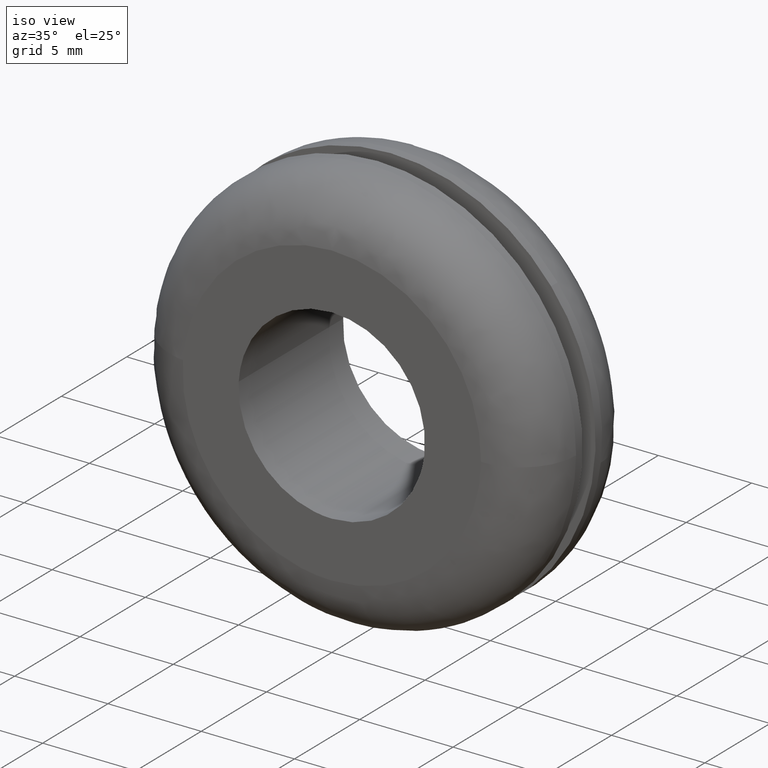
[diagram: clean part render]
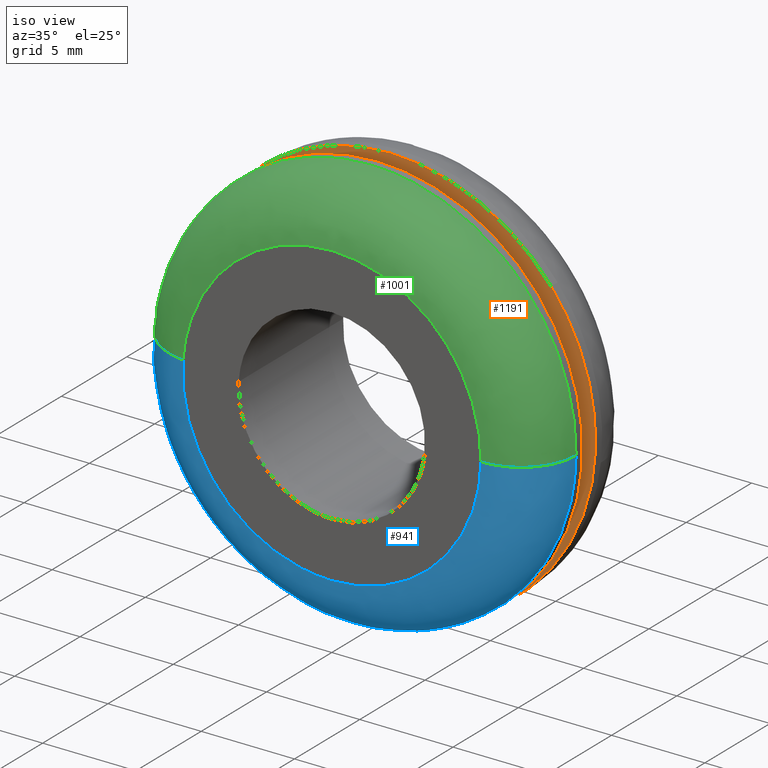
[diagram: same view with three faces highlighted in distinct colors, each labeled with its STEP entity id]
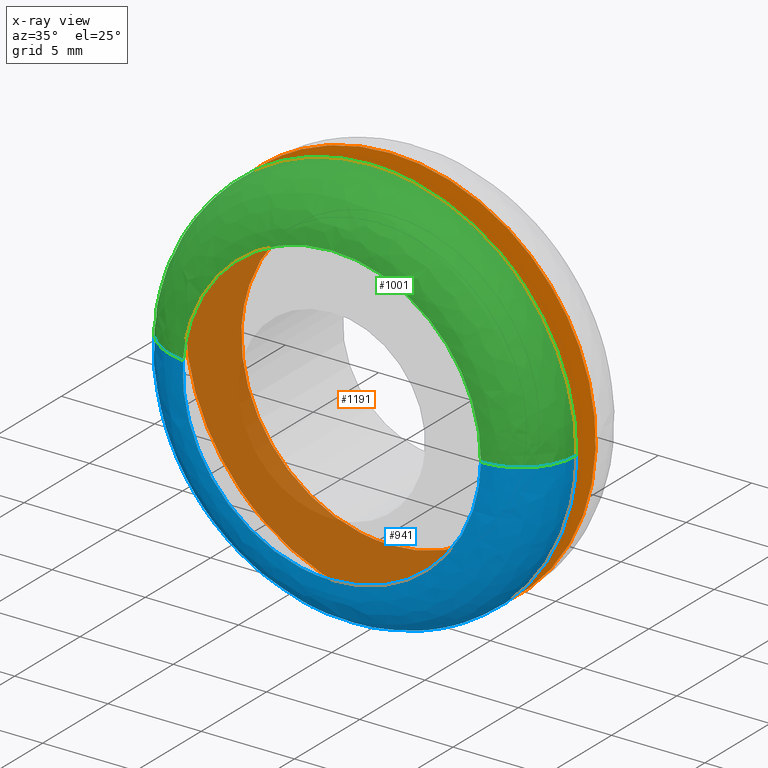
[diagram: x-ray of the same camera — body ghosted, the three highlighted faces saturated]
A machine part, iso view with three faces highlighted in distinct colors.
The next image is the same camera in x-ray (body ghosted, the three faces saturated) — at least one of them is partly hidden behind the body in this view.
Their STEP definitions:

[orange] entity #1191 — the highlighted face is a freeform B-spline surface patch.
#301=CARTESIAN_POINT('',(7.944076705149378,4.500000000000001,-0.944269719246281));
#302=VERTEX_POINT('',#301);
#308=CARTESIAN_POINT('',(0.0,4.500000000000000,8.0));
#309=VERTEX_POINT('',#308);
#310=CARTESIAN_POINT('',(7.944076705149379,4.500000000000001,-0.944269719246281));
#311=CARTESIAN_POINT('',(8.0,4.500000000000001,-0.473790856232588));
#312=CARTESIAN_POINT('',(8.0,4.500000000000000,-1.836910E-016));
#313=CARTESIAN_POINT('',(8.0,4.500000000000000,8.0));
#314=CARTESIAN_POINT('',(0.0,4.500000000000000,8.0));
#322=(BOUNDED_CURVE()B_SPLINE_CURVE(2,(#310,#311,#312,#313,#314),.UNSPECIFIED.,.F.,.U.)B_SPLINE_CURVE_WITH_KNOTS((3,2,3),(0.229562561973614,0.250000000000000,0.500000000000000),.UNSPECIFIED.)CURVE()GEOMETRIC_REPRESENTATION_ITEM()RATIONAL_B_SPLINE_CURVE((0.956026927569199,0.976056051968605,1.0,0.707106781186548,1.0))REPRESENTATION_ITEM(''));
#323=EDGE_CURVE('',#302,#309,#322,.T.);
#325=CARTESIAN_POINT('',(-7.985078749891537,4.500000000000000,0.488382389112600));
#326=VERTEX_POINT('',#325);
#327=CARTESIAN_POINT('',(0.0,4.500000000000000,8.0));
#328=CARTESIAN_POINT('',(-7.525654131826543,4.500000000000000,8.0));
#329=CARTESIAN_POINT('',(-7.985078749891537,4.500000000000000,0.488382389112600));
#337=(BOUNDED_CURVE()B_SPLINE_CURVE(2,(#327,#328,#329),.UNSPECIFIED.,.F.,.U.)B_SPLINE_CURVE_WITH_KNOTS((3,3),(0.500000000000000,0.739333090320061),.UNSPECIFIED.)CURVE()GEOMETRIC_REPRESENTATION_ITEM()RATIONAL_B_SPLINE_CURVE((1.0,0.719603843230347,0.976072316169088))REPRESENTATION_ITEM(''));
#338=EDGE_CURVE('',#309,#326,#337,.T.);
#412=CARTESIAN_POINT('',(0.0,4.500000000000000,-8.0));
#413=VERTEX_POINT('',#412);
#414=CARTESIAN_POINT('',(-7.985078749891537,4.500000000000000,0.488382389112600));
#415=CARTESIAN_POINT('',(-8.0,4.500000000000001,0.244419134496152));
#416=CARTESIAN_POINT('',(-8.0,4.500000000000000,-1.836910E-016));
#417=CARTESIAN_POINT('',(-8.0,4.500000000000000,-8.0));
#418=CARTESIAN_POINT('',(0.0,4.500000000000000,-8.0));
#426=(BOUNDED_CURVE()B_SPLINE_CURVE(2,(#414,#415,#416,#417,#418),.UNSPECIFIED.,.F.,.U.)B_SPLINE_CURVE_WITH_KNOTS((3,2,3),(0.739333090320061,0.750000000000000,1.0),.UNSPECIFIED.)CURVE()GEOMETRIC_REPRESENTATION_ITEM()RATIONAL_B_SPLINE_CURVE((0.976072316169088,0.987502937956201,1.0,0.707106781186548,1.0))REPRESENTATION_ITEM(''));
#427=EDGE_CURVE('',#326,#413,#426,.T.);
#429=CARTESIAN_POINT('',(0.0,4.500000000000000,-8.0));
#430=CARTESIAN_POINT('',(7.105399952826813,4.500000000000001,-8.000000000000002));
#431=CARTESIAN_POINT('',(7.944076705149378,4.500000000000001,-0.944269719246281));
#439=(BOUNDED_CURVE()B_SPLINE_CURVE(2,(#429,#430,#431),.UNSPECIFIED.,.F.,.U.)B_SPLINE_CURVE_WITH_KNOTS((3,3),(0.0,0.229562561973614),.UNSPECIFIED.)CURVE()GEOMETRIC_REPRESENTATION_ITEM()RATIONAL_B_SPLINE_CURVE((1.0,0.731050729217943,0.956026927569199))REPRESENTATION_ITEM(''));
#440=EDGE_CURVE('',#413,#302,#439,.T.);
#532=CARTESIAN_POINT('',(8.608690875344491,4.500000000000000,6.847659557305477));
#533=VERTEX_POINT('',#532);
#539=CARTESIAN_POINT('',(0.0,4.500000000000000,-11.0));
#540=VERTEX_POINT('',#539);
#541=CARTESIAN_POINT('',(0.0,4.500000000000000,-11.0));
#542=CARTESIAN_POINT('',(11.0,4.500000000000000,-11.0));
#543=CARTESIAN_POINT('',(11.0,4.500000000000000,-1.836910E-016));
#544=CARTESIAN_POINT('',(11.0,4.500000000000000,3.841370931349212));
#545=CARTESIAN_POINT('',(8.608690875344491,4.499999999999999,6.847659557305478));
#553=(BOUNDED_CURVE()B_SPLINE_CURVE(2,(#541,#542,#543,#544,#545),.UNSPECIFIED.,.F.,.U.)B_SPLINE_CURVE_WITH_KNOTS((3,2,3),(0.0,0.250000000000000,0.357863851970168),.UNSPECIFIED.)CURVE()GEOMETRIC_REPRESENTATION_ITEM()RATIONAL_B_SPLINE_CURVE((1.0,0.707106781186548,1.0,0.873629636811360,0.856305626809886))REPRESENTATION_ITEM(''));
#554=EDGE_CURVE('',#540,#533,#553,.T.);
#556=CARTESIAN_POINT('',(-6.847659774495628,4.500000000000000,8.608690702583754));
#557=VERTEX_POINT('',#556);
#558=CARTESIAN_POINT('',(-6.847659774495628,4.500000000000000,8.608690702583754));
#559=CARTESIAN_POINT('',(-11.0,4.500000000000001,5.305771116487904));
#560=CARTESIAN_POINT('',(-11.0,4.500000000000000,-1.836910E-016));
#561=CARTESIAN_POINT('',(-11.0,4.500000000000000,-11.0));
#562=CARTESIAN_POINT('',(0.0,4.500000000000000,-11.0));
#570=(BOUNDED_CURVE()B_SPLINE_CURVE(2,(#558,#559,#560,#561,#562),.UNSPECIFIED.,.F.,.U.)B_SPLINE_CURVE_WITH_KNOTS((3,2,3),(0.607863855789230,0.750000000000000,1.0),.UNSPECIFIED.)CURVE()GEOMETRIC_REPRESENTATION_ITEM()RATIONAL_B_SPLINE_CURVE((0.856305625583127,0.833477148849498,1.0,0.707106781186548,1.0))REPRESENTATION_ITEM(''));
#571=EDGE_CURVE('',#557,#540,#570,.T.);
#611=CARTESIAN_POINT('',(0.0,4.500000000000000,11.0));
#612=VERTEX_POINT('',#611);
#613=CARTESIAN_POINT('',(0.0,4.500000000000000,11.0));
#614=CARTESIAN_POINT('',(-3.841371087031690,4.500000000000000,11.0));
#615=CARTESIAN_POINT('',(-6.847659774495628,4.500000000000000,8.608690702583754));
#623=(BOUNDED_CURVE()B_SPLINE_CURVE(2,(#613,#614,#615),.UNSPECIFIED.,.F.,.U.)B_SPLINE_CURVE_WITH_KNOTS((3,3),(0.500000000000000,0.607863855789230),.UNSPECIFIED.)CURVE()GEOMETRIC_REPRESENTATION_ITEM()RATIONAL_B_SPLINE_CURVE((1.0,0.873629632337049,0.856305625583127))REPRESENTATION_ITEM(''));
#624=EDGE_CURVE('',#612,#557,#623,.T.);
#626=CARTESIAN_POINT('',(8.608690875344491,4.499999999999999,6.847659557305478));
#627=CARTESIAN_POINT('',(5.305771287531594,4.500000000000000,10.999999999999998));
#628=CARTESIAN_POINT('',(0.0,4.500000000000000,11.0));
#636=(BOUNDED_CURVE()B_SPLINE_CURVE(2,(#626,#627,#628),.UNSPECIFIED.,.F.,.U.)B_SPLINE_CURVE_WITH_KNOTS((3,3),(0.357863851970168,0.500000000000000),.UNSPECIFIED.)CURVE()GEOMETRIC_REPRESENTATION_ITEM()RATIONAL_B_SPLINE_CURVE((0.856305626809886,0.833477144375188,1.0))REPRESENTATION_ITEM(''));
#637=EDGE_CURVE('',#533,#612,#636,.T.);
#1174=CARTESIAN_POINT('',(-12.098641364716890,4.500000000000000,-12.098899957359730));
#1175=CARTESIAN_POINT('',(-12.098641364716890,4.500000000000000,12.098900547445711));
#1176=CARTESIAN_POINT('',(12.098883299970030,4.500000000000000,-12.098899957359730));
#1177=CARTESIAN_POINT('',(12.098883299970030,4.500000000000000,12.098900547445711));
#1178=B_SPLINE_SURFACE_WITH_KNOTS('',1,1,((#1174,#1176),(#1175,#1177)),.UNSPECIFIED.,.F.,.F.,.U.,(2,2),(2,2),(0.0,24.197800504805439),(0.0,24.197524664686920),.UNSPECIFIED.);
#1179=ORIENTED_EDGE('',*,*,#554,.T.);
#1180=ORIENTED_EDGE('',*,*,#637,.T.);
#1181=ORIENTED_EDGE('',*,*,#624,.T.);
#1182=ORIENTED_EDGE('',*,*,#571,.T.);
#1183=EDGE_LOOP('',(#1179,#1180,#1181,#1182));
#1184=FACE_OUTER_BOUND('',#1183,.T.);
#1185=ORIENTED_EDGE('',*,*,#338,.F.);
#1186=ORIENTED_EDGE('',*,*,#323,.F.);
#1187=ORIENTED_EDGE('',*,*,#440,.F.);
#1188=ORIENTED_EDGE('',*,*,#427,.F.);
#1189=EDGE_LOOP('',(#1185,#1186,#1187,#1188));
#1190=FACE_BOUND('',#1189,.T.);
#1191=ADVANCED_FACE('',(#1184,#1190),#1178,.F.);

[blue] entity #941 — the highlighted face is a freeform B-spline surface patch.
#70=CARTESIAN_POINT('',(5.970017122025991,2.999999999996160,-9.238987799683866));
#71=VERTEX_POINT('',#70);
#72=CARTESIAN_POINT('',(10.999131486241900,2.999999999976373,-0.138226438722938));
#73=VERTEX_POINT('',#72);
#74=CARTESIAN_POINT('',(5.970017122025991,2.999999999996160,-9.238987799683866));
#75=CARTESIAN_POINT('',(10.924998957870597,2.999999999989205,-6.037195076424144));
#76=CARTESIAN_POINT('',(10.999131486241904,2.999999999976373,-0.138226438722938));
#84=(BOUNDED_CURVE()B_SPLINE_CURVE(2,(#74,#75,#76),.UNSPECIFIED.,.F.,.U.)B_SPLINE_CURVE_WITH_KNOTS((3,3),(0.092934731225705,0.247784295921534),.UNSPECIFIED.)CURVE()GEOMETRIC_REPRESENTATION_ITEM()RATIONAL_B_SPLINE_CURVE((0.863190106682967,0.816652486740030,0.994854295643566))REPRESENTATION_ITEM(''));
#85=EDGE_CURVE('',#71,#73,#84,.T.);
#128=CARTESIAN_POINT('',(-8.487870932863761,2.999999999999981,-6.996859797583897));
#129=VERTEX_POINT('',#128);
#135=CARTESIAN_POINT('',(-10.973222412244651,2.999999999976504,0.767065767331439));
#136=VERTEX_POINT('',#135);
#137=CARTESIAN_POINT('',(-10.973222412244642,2.999999999976505,0.767065767331439));
#138=CARTESIAN_POINT('',(-11.000000000000004,3.000000000000000,0.384000274623409));
#139=CARTESIAN_POINT('',(-11.0,3.0,-1.836910E-016));
#140=CARTESIAN_POINT('',(-11.0,3.000000000000000,-3.949402637264811));
#141=CARTESIAN_POINT('',(-8.487870932863761,2.999999999999981,-6.996859797583897));
#149=(BOUNDED_CURVE()B_SPLINE_CURVE(2,(#137,#138,#139,#140,#141),.UNSPECIFIED.,.F.,.U.)B_SPLINE_CURVE_WITH_KNOTS((3,2,3),(0.737833686535085,0.750000000000000,0.860504603570302),.UNSPECIFIED.)CURVE()GEOMETRIC_REPRESENTATION_ITEM()RATIONAL_B_SPLINE_CURVE((0.972879876386962,0.985746277152671,1.0,0.870535803866359,0.855522725095084))REPRESENTATION_ITEM(''));
#150=EDGE_CURVE('',#136,#129,#149,.T.);
#199=CARTESIAN_POINT('',(0.0,3.0,-11.0));
#200=VERTEX_POINT('',#199);
#201=CARTESIAN_POINT('',(0.0,3.0,-11.0));
#202=CARTESIAN_POINT('',(3.244736562206635,3.000000000000000,-11.0));
#203=CARTESIAN_POINT('',(5.970017122025991,2.999999999996159,-9.238987799683866));
#211=(BOUNDED_CURVE()B_SPLINE_CURVE(2,(#201,#202,#203),.UNSPECIFIED.,.F.,.U.)B_SPLINE_CURVE_WITH_KNOTS((3,3),(0.0,0.092934731225705),.UNSPECIFIED.)CURVE()GEOMETRIC_REPRESENTATION_ITEM()RATIONAL_B_SPLINE_CURVE((1.0,0.891120189726961,0.863190106682967))REPRESENTATION_ITEM(''));
#212=EDGE_CURVE('',#200,#71,#211,.T.);
#214=CARTESIAN_POINT('',(-8.487870932863761,2.999999999999982,-6.996859797583897));
#215=CARTESIAN_POINT('',(-5.187937797377877,3.000000000000000,-11.0));
#216=CARTESIAN_POINT('',(0.0,3.0,-11.0));
#224=(BOUNDED_CURVE()B_SPLINE_CURVE(2,(#214,#215,#216),.UNSPECIFIED.,.F.,.U.)B_SPLINE_CURVE_WITH_KNOTS((3,3),(0.860504603570303,1.0),.UNSPECIFIED.)CURVE()GEOMETRIC_REPRESENTATION_ITEM()RATIONAL_B_SPLINE_CURVE((0.855522725095084,0.836570977320190,1.0))REPRESENTATION_ITEM(''));
#225=EDGE_CURVE('',#129,#200,#224,.T.);
#846=CARTESIAN_POINT('',(-10.965978228283376,3.208611335769386,0.766558765937777));
#847=CARTESIAN_POINT('',(-10.987916789658303,3.208611335769384,0.452717483197977));
#848=CARTESIAN_POINT('',(-10.991870155500933,3.208611335769385,0.138135185340199));
#849=CARTESIAN_POINT('',(-11.130005340841130,3.208611335769386,-10.853734970160732));
#850=CARTESIAN_POINT('',(-0.138135185340200,3.208611335769385,-10.991870155500933));
#851=CARTESIAN_POINT('',(10.853734970160730,3.208611335769386,-11.130005340841130));
#852=CARTESIAN_POINT('',(10.991870155500933,3.208611335769385,-0.138135185340201));
#853=CARTESIAN_POINT('',(-11.205267658361432,-0.232611728469922,0.783285902031253));
#854=CARTESIAN_POINT('',(-11.227684942722933,-0.232611728469922,0.462596265216840));
#855=CARTESIAN_POINT('',(-11.231724575256932,-0.232611728469922,0.141149443538208));
#856=CARTESIAN_POINT('',(-11.372874018795137,-0.232611728469922,-11.090575131718722));
#857=CARTESIAN_POINT('',(-0.141149443538208,-0.232611728469922,-11.231724575256932));
#858=CARTESIAN_POINT('',(11.090575131718721,-0.232611728469922,-11.372874018795137));
#859=CARTESIAN_POINT('',(11.231724575256932,-0.232611728469922,-0.141149443538209));
#860=CARTESIAN_POINT('',(-7.772421660445090,0.007261921755989,0.543318419237051));
#861=CARTESIAN_POINT('',(-7.787971185173284,0.007261921755989,0.320875265226654));
#862=CARTESIAN_POINT('',(-7.790773235812743,0.007261921755989,0.097906897520426));
#863=CARTESIAN_POINT('',(-7.888680133333168,0.007261921755989,-7.692866338292316));
#864=CARTESIAN_POINT('',(-0.097906897520426,0.007261921755989,-7.790773235812743));
#865=CARTESIAN_POINT('',(7.692866338292316,0.007261921755989,-7.888680133333168));
#866=CARTESIAN_POINT('',(7.790773235812743,0.007261921755989,-0.097906897520427));
#874=(BOUNDED_SURFACE()B_SPLINE_SURFACE(2,2,((#846,#853,#860),(#847,#854,#861),(#848,#855,#862),(#849,#856,#863),(#850,#857,#864),(#851,#858,#865),(#852,#859,#866)),.UNSPECIFIED.,.F.,.F.,.U.)B_SPLINE_SURFACE_WITH_KNOTS((3,2,2,3),(3,3),(0.0,0.728533898324524,18.941898726055879,37.155263553787222),(0.0,5.467122061680981),.UNSPECIFIED.)GEOMETRIC_REPRESENTATION_ITEM()RATIONAL_B_SPLINE_SURFACE(((0.889999301068235,0.584039748018019,0.889999335365820),(0.899812872104528,0.590479658193582,0.899812906780295),(0.910479796259388,0.597479559977835,0.910479831346223),(0.643806438068360,0.422481848480682,0.643806462878498),(0.910479796259388,0.597479559977835,0.910479831346223),(0.643806438068360,0.422481848480682,0.643806462878498),(0.910479796259388,0.597479559977835,0.910479831346223)))REPRESENTATION_ITEM('')SURFACE());
#875=ORIENTED_EDGE('',*,*,#150,.T.);
#876=ORIENTED_EDGE('',*,*,#225,.T.);
#877=ORIENTED_EDGE('',*,*,#212,.T.);
#878=ORIENTED_EDGE('',*,*,#85,.T.);
#879=CARTESIAN_POINT('',(7.999368353661293,-1.633963E-016,-0.100528319070165));
#880=VERTEX_POINT('',#879);
#881=CARTESIAN_POINT('',(10.999131486241900,2.999999999976372,-0.138226438722938));
#882=CARTESIAN_POINT('',(10.999131486194724,6.161021E-011,-0.138226438716285));
#883=CARTESIAN_POINT('',(7.999368353661293,-1.633963E-016,-0.100528319070165));
#891=(BOUNDED_CURVE()B_SPLINE_CURVE(2,(#881,#882,#883),.UNSPECIFIED.,.F.,.U.)B_SPLINE_CURVE_WITH_KNOTS((3,3),(-1.725134643265661,-0.274865356739246),.UNSPECIFIED.)CURVE()GEOMETRIC_REPRESENTATION_ITEM()RATIONAL_B_SPLINE_CURVE((0.883342149647296,0.624617224134219,0.883342149645545))REPRESENTATION_ITEM(''));
#892=EDGE_CURVE('',#73,#880,#891,.T.);
#893=ORIENTED_EDGE('',*,*,#892,.T.);
#894=CARTESIAN_POINT('',(0.0,-1.332268E-015,-8.0));
#895=VERTEX_POINT('',#894);
#896=CARTESIAN_POINT('',(0.0,-1.332268E-015,-8.0));
#897=CARTESIAN_POINT('',(7.900095439252673,-1.332268E-015,-8.0));
#898=CARTESIAN_POINT('',(7.999368353661293,-1.633963E-016,-0.100528319070165));
#906=(BOUNDED_CURVE()B_SPLINE_CURVE(2,(#896,#897,#898),.UNSPECIFIED.,.F.,.U.)B_SPLINE_CURVE_WITH_KNOTS((3,3),(0.0,0.247784295921598),.UNSPECIFIED.)CURVE()GEOMETRIC_REPRESENTATION_ITEM()RATIONAL_B_SPLINE_CURVE((1.0,0.709702639984392,0.994854295643713))REPRESENTATION_ITEM(''));
#907=EDGE_CURVE('',#895,#880,#906,.T.);
#908=ORIENTED_EDGE('',*,*,#907,.F.);
#909=CARTESIAN_POINT('',(-7.980525390874352,-1.518274E-016,0.557866012641688));
#910=VERTEX_POINT('',#909);
#911=CARTESIAN_POINT('',(-7.980525390874352,-1.518274E-016,0.557866012641688));
#912=CARTESIAN_POINT('',(-8.000000000000002,-1.332268E-015,0.279272927025262));
#913=CARTESIAN_POINT('',(-8.0,-1.332268E-015,-1.836910E-016));
#914=CARTESIAN_POINT('',(-8.0,-1.332268E-015,-8.0));
#915=CARTESIAN_POINT('',(0.0,-1.332268E-015,-8.0));
#923=(BOUNDED_CURVE()B_SPLINE_CURVE(2,(#911,#912,#913,#914,#915),.UNSPECIFIED.,.F.,.U.)B_SPLINE_CURVE_WITH_KNOTS((3,2,3),(0.737833686533951,0.750000000000000,1.0),.UNSPECIFIED.)CURVE()GEOMETRIC_REPRESENTATION_ITEM()RATIONAL_B_SPLINE_CURVE((0.972879876384563,0.985746277151341,1.0,0.707106781186548,1.0))REPRESENTATION_ITEM(''));
#924=EDGE_CURVE('',#910,#895,#923,.T.);
#925=ORIENTED_EDGE('',*,*,#924,.F.);
#926=CARTESIAN_POINT('',(-10.973222412244645,2.999999999976504,0.767065767331439));
#927=CARTESIAN_POINT('',(-10.973222412197876,3.063725E-010,0.767065767326587));
#928=CARTESIAN_POINT('',(-7.980525390874352,-1.518274E-016,0.557866012641688));
#936=(BOUNDED_CURVE()B_SPLINE_CURVE(2,(#926,#927,#928),.UNSPECIFIED.,.F.,.U.)B_SPLINE_CURVE_WITH_KNOTS((3,3),(-1.725134643265751,-0.274865356822913),.UNSPECIFIED.)CURVE()GEOMETRIC_REPRESENTATION_ITEM()RATIONAL_B_SPLINE_CURVE((0.863472075367100,0.610566959882324,0.863472075336177))REPRESENTATION_ITEM(''));
#937=EDGE_CURVE('',#136,#910,#936,.T.);
#938=ORIENTED_EDGE('',*,*,#937,.F.);
#939=EDGE_LOOP('',(#875,#876,#877,#878,#893,#908,#925,#938));
#940=FACE_OUTER_BOUND('',#939,.T.);
#941=ADVANCED_FACE('',(#940),#874,.T.);

[green] entity #1001 — the highlighted face is a freeform B-spline surface patch.
#72=CARTESIAN_POINT('',(10.999131486241900,2.999999999976373,-0.138226438722938));
#73=VERTEX_POINT('',#72);
#135=CARTESIAN_POINT('',(-10.973222412244651,2.999999999976504,0.767065767331439));
#136=VERTEX_POINT('',#135);
#152=CARTESIAN_POINT('',(0.0,3.0,11.0));
#153=VERTEX_POINT('',#152);
#154=CARTESIAN_POINT('',(0.0,3.0,11.0));
#155=CARTESIAN_POINT('',(-10.257905319929851,3.000000000000001,11.0));
#156=CARTESIAN_POINT('',(-10.973222412244647,2.999999999976504,0.767065767331439));
#164=(BOUNDED_CURVE()B_SPLINE_CURVE(2,(#154,#155,#156),.UNSPECIFIED.,.F.,.U.)B_SPLINE_CURVE_WITH_KNOTS((3,3),(0.500000000000000,0.737833686535085),.UNSPECIFIED.)CURVE()GEOMETRIC_REPRESENTATION_ITEM()RATIONAL_B_SPLINE_CURVE((1.0,0.721360504033877,0.972879876386962))REPRESENTATION_ITEM(''));
#165=EDGE_CURVE('',#153,#136,#164,.T.);
#167=CARTESIAN_POINT('',(10.999131486241900,2.999999999976372,-0.138226438722938));
#168=CARTESIAN_POINT('',(11.000000000000005,3.000000000000000,-0.069115947916848));
#169=CARTESIAN_POINT('',(11.0,3.0,-1.836910E-016));
#170=CARTESIAN_POINT('',(11.0,3.0,11.0));
#171=CARTESIAN_POINT('',(0.0,3.0,11.0));
#179=(BOUNDED_CURVE()B_SPLINE_CURVE(2,(#167,#168,#169,#170,#171),.UNSPECIFIED.,.F.,.U.)B_SPLINE_CURVE_WITH_KNOTS((3,2,3),(0.247784295921534,0.250000000000000,0.500000000000000),.UNSPECIFIED.)CURVE()GEOMETRIC_REPRESENTATION_ITEM()RATIONAL_B_SPLINE_CURVE((0.994854295643566,0.997404141202081,1.0,0.707106781186548,1.0))REPRESENTATION_ITEM(''));
#180=EDGE_CURVE('',#73,#153,#179,.T.);
#879=CARTESIAN_POINT('',(7.999368353661293,-1.633963E-016,-0.100528319070165));
#880=VERTEX_POINT('',#879);
#881=CARTESIAN_POINT('',(10.999131486241900,2.999999999976372,-0.138226438722938));
#882=CARTESIAN_POINT('',(10.999131486194724,6.161021E-011,-0.138226438716285));
#883=CARTESIAN_POINT('',(7.999368353661293,-1.633963E-016,-0.100528319070165));
#891=(BOUNDED_CURVE()B_SPLINE_CURVE(2,(#881,#882,#883),.UNSPECIFIED.,.F.,.U.)B_SPLINE_CURVE_WITH_KNOTS((3,3),(-1.725134643265661,-0.274865356739246),.UNSPECIFIED.)CURVE()GEOMETRIC_REPRESENTATION_ITEM()RATIONAL_B_SPLINE_CURVE((0.883342149647296,0.624617224134219,0.883342149645545))REPRESENTATION_ITEM(''));
#892=EDGE_CURVE('',#73,#880,#891,.T.);
#909=CARTESIAN_POINT('',(-7.980525390874352,-1.518274E-016,0.557866012641688));
#910=VERTEX_POINT('',#909);
#926=CARTESIAN_POINT('',(-10.973222412244645,2.999999999976504,0.767065767331439));
#927=CARTESIAN_POINT('',(-10.973222412197876,3.063725E-010,0.767065767326587));
#928=CARTESIAN_POINT('',(-7.980525390874352,-1.518274E-016,0.557866012641688));
#936=(BOUNDED_CURVE()B_SPLINE_CURVE(2,(#926,#927,#928),.UNSPECIFIED.,.F.,.U.)B_SPLINE_CURVE_WITH_KNOTS((3,3),(-1.725134643265751,-0.274865356822913),.UNSPECIFIED.)CURVE()GEOMETRIC_REPRESENTATION_ITEM()RATIONAL_B_SPLINE_CURVE((0.863472075367100,0.610566959882324,0.863472075336177))REPRESENTATION_ITEM(''));
#937=EDGE_CURVE('',#136,#910,#936,.T.);
#942=CARTESIAN_POINT('',(10.991870155500933,3.208611335769385,-0.138135185340198));
#943=CARTESIAN_POINT('',(11.130005340841128,3.208611335769386,10.853734970160732));
#944=CARTESIAN_POINT('',(0.138135185340199,3.208611335769385,10.991870155500933));
#945=CARTESIAN_POINT('',(-10.242075206949785,3.208611335769385,11.122318592948279));
#946=CARTESIAN_POINT('',(-10.965978185977434,3.208611335769385,0.766559371143613));
#947=CARTESIAN_POINT('',(11.231724575256932,-0.232611728469922,-0.141149443538206));
#948=CARTESIAN_POINT('',(11.372874018795134,-0.232611728469922,11.090575131718722));
#949=CARTESIAN_POINT('',(0.141149443538207,-0.232611728469922,11.231724575256932));
#950=CARTESIAN_POINT('',(-10.465568295123763,-0.232611728469922,11.365019537802318));
#951=CARTESIAN_POINT('',(-11.205267615132330,-0.232611728469922,0.783286520443330));
#952=CARTESIAN_POINT('',(7.790773235812743,0.007261921755989,-0.097906897520425));
#953=CARTESIAN_POINT('',(7.888680133333168,0.007261921755989,7.692866338292316));
#954=CARTESIAN_POINT('',(0.097906897520425,0.007261921755989,7.790773235812743));
#955=CARTESIAN_POINT('',(-7.259336607206242,0.007261921755989,7.883231951276168));
#956=CARTESIAN_POINT('',(-7.772421630459656,0.007261921755989,0.543318848192393));
#964=(BOUNDED_SURFACE()B_SPLINE_SURFACE(2,2,((#942,#947,#952),(#943,#948,#953),(#944,#949,#954),(#945,#950,#955),(#946,#951,#956)),.UNSPECIFIED.,.F.,.F.,.U.)B_SPLINE_SURFACE_WITH_KNOTS((3,2,3),(3,3),(0.0,18.213364827731350,35.698195062353449),(0.0,5.467122061680982),.UNSPECIFIED.)GEOMETRIC_REPRESENTATION_ITEM()RATIONAL_B_SPLINE_SURFACE(((0.910479796259388,0.597479559977835,0.910479831346223),(0.643806438068360,0.422481848480682,0.643806462878498),(0.910479796259388,0.597479559977835,0.910479831346223),(0.654473372396001,0.429481756940568,0.654473397617207),(0.889999282350317,0.584039735734854,0.889999316647901)))REPRESENTATION_ITEM('')SURFACE());
#965=ORIENTED_EDGE('',*,*,#165,.T.);
#966=ORIENTED_EDGE('',*,*,#937,.T.);
#967=CARTESIAN_POINT('',(0.0,-1.332268E-015,8.0));
#968=VERTEX_POINT('',#967);
#969=CARTESIAN_POINT('',(0.0,-1.332268E-015,8.0));
#970=CARTESIAN_POINT('',(-7.460294778081462,-1.332268E-015,8.0));
#971=CARTESIAN_POINT('',(-7.980525390874353,-1.518274E-016,0.557866012641688));
#979=(BOUNDED_CURVE()B_SPLINE_CURVE(2,(#969,#970,#971),.UNSPECIFIED.,.F.,.U.)B_SPLINE_CURVE_WITH_KNOTS((3,3),(0.500000000000000,0.737833686533950),.UNSPECIFIED.)CURVE()GEOMETRIC_REPRESENTATION_ITEM()RATIONAL_B_SPLINE_CURVE((1.0,0.721360504035207,0.972879876384562))REPRESENTATION_ITEM(''));
#980=EDGE_CURVE('',#968,#910,#979,.T.);
#981=ORIENTED_EDGE('',*,*,#980,.F.);
#982=CARTESIAN_POINT('',(7.999368353661293,-1.633963E-016,-0.100528319070165));
#983=CARTESIAN_POINT('',(8.0,-1.332268E-015,-0.050266143938075));
#984=CARTESIAN_POINT('',(8.0,-1.332268E-015,-1.836910E-016));
#985=CARTESIAN_POINT('',(8.0,-1.332268E-015,8.0));
#986=CARTESIAN_POINT('',(0.0,-1.332268E-015,8.0));
#994=(BOUNDED_CURVE()B_SPLINE_CURVE(2,(#982,#983,#984,#985,#986),.UNSPECIFIED.,.F.,.U.)B_SPLINE_CURVE_WITH_KNOTS((3,2,3),(0.247784295921598,0.250000000000000,0.500000000000000),.UNSPECIFIED.)CURVE()GEOMETRIC_REPRESENTATION_ITEM()RATIONAL_B_SPLINE_CURVE((0.994854295643713,0.997404141202155,1.0,0.707106781186548,1.0))REPRESENTATION_ITEM(''));
#995=EDGE_CURVE('',#880,#968,#994,.T.);
#996=ORIENTED_EDGE('',*,*,#995,.F.);
#997=ORIENTED_EDGE('',*,*,#892,.F.);
#998=ORIENTED_EDGE('',*,*,#180,.T.);
#999=EDGE_LOOP('',(#965,#966,#981,#996,#997,#998));
#1000=FACE_OUTER_BOUND('',#999,.T.);
#1001=ADVANCED_FACE('',(#1000),#964,.T.);